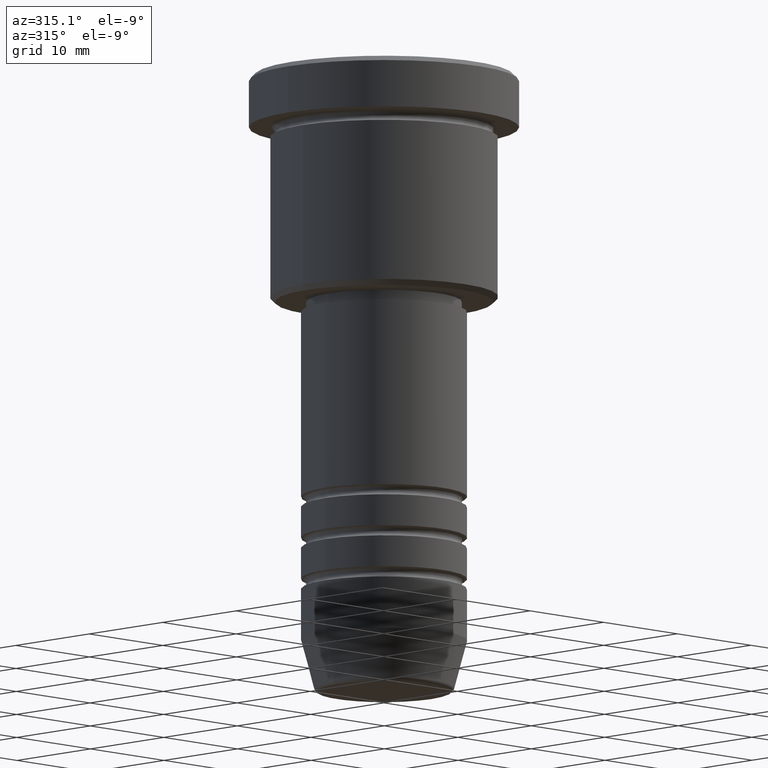
[diagram: clean part render]
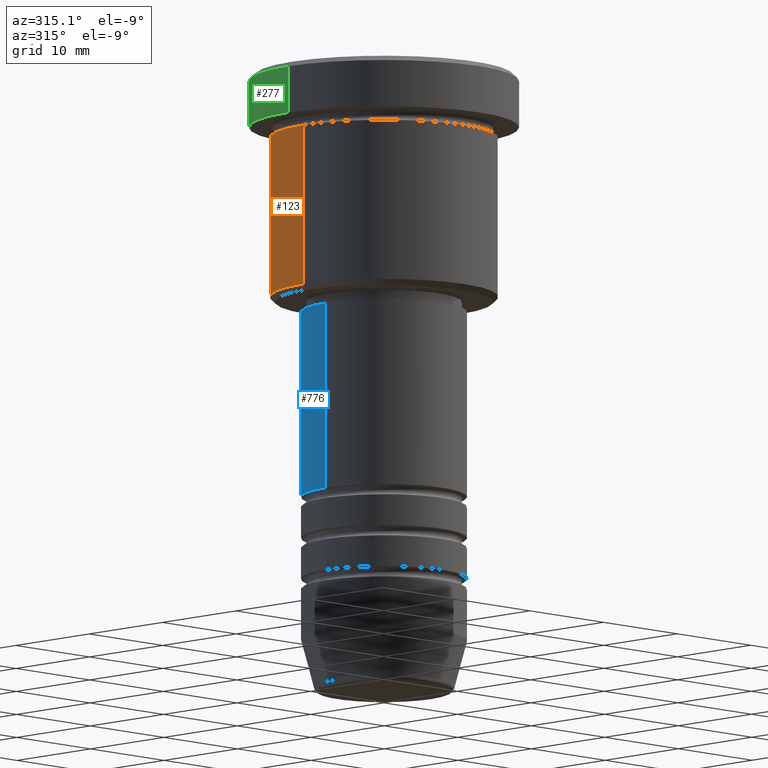
[diagram: same view with three faces highlighted in distinct colors, each labeled with its STEP entity id]
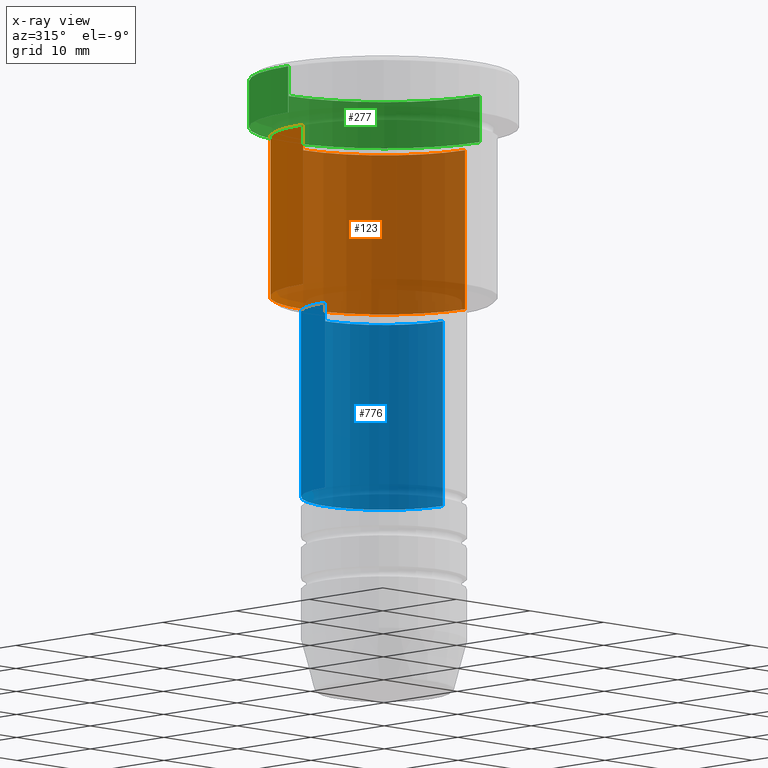
[diagram: x-ray of the same camera — body ghosted, the three highlighted faces saturated]
A machine part, auxiliary view with three faces highlighted in distinct colors.
The next image is the same camera in x-ray (body ghosted, the three faces saturated) — at least one of them is partly hidden behind the body in this view.
Their STEP definitions:

[orange] entity #123 — the highlighted cylindrical surface (partial cylindrical patch) has radius 11 mm, axis along (-0, -0, 1).
#14 = DIRECTION ( 'NONE',  ( -0.000000000000000000, -0.000000000000000000, 1.000000000000000000 ) ) ;
#88 = VERTEX_POINT ( 'NONE', #588 ) ;
#123 = ADVANCED_FACE ( 'NONE', ( #764 ), #230, .T. ) ;
#129 = CARTESIAN_POINT ( 'NONE',  ( 0.000000000000000000, 0.000000000000000000, -5.999999999999999112 ) ) ;
#132 = CARTESIAN_POINT ( 'NONE',  ( 11.00000000000000000, 0.000000000000000000, -5.999999999999999112 ) ) ;
#230 = CYLINDRICAL_SURFACE ( 'NONE', #919, 11.00000000000000000 ) ;
#234 = LINE ( 'NONE', #423, #965 ) ;
#286 = AXIS2_PLACEMENT_3D ( 'NONE', #129, #762, #637 ) ;
#313 = ORIENTED_EDGE ( 'NONE', *, *, #1163, .T. ) ;
#324 = VECTOR ( 'NONE', #14, 1000.000000000000000 ) ;
#344 = ORIENTED_EDGE ( 'NONE', *, *, #1177, .T. ) ;
#389 = CARTESIAN_POINT ( 'NONE',  ( 0.000000000000000000, 0.000000000000000000, 0.000000000000000000 ) ) ;
#408 = DIRECTION ( 'NONE',  ( -1.000000000000000000, 0.000000000000000000, 0.000000000000000000 ) ) ;
#420 = CIRCLE ( 'NONE', #286, 11.00000000000000000 ) ;
#423 = CARTESIAN_POINT ( 'NONE',  ( -11.00000000000000000, 1.347111479062088405E-15, 0.000000000000000000 ) ) ;
#432 = ORIENTED_EDGE ( 'NONE', *, *, #856, .F. ) ;
#480 = CARTESIAN_POINT ( 'NONE',  ( 11.00000000000000000, 0.000000000000000000, 0.000000000000000000 ) ) ;
#515 = EDGE_LOOP ( 'NONE', ( #344, #313, #892, #432 ) ) ;
#560 = VERTEX_POINT ( 'NONE', #866 ) ;
#564 = DIRECTION ( 'NONE',  ( -0.000000000000000000, -0.000000000000000000, 1.000000000000000000 ) ) ;
#572 = CIRCLE ( 'NONE', #1116, 11.00000000000000000 ) ;
#588 = CARTESIAN_POINT ( 'NONE',  ( 11.00000000000000000, 0.000000000000000000, -21.50000000000000000 ) ) ;
#592 = CARTESIAN_POINT ( 'NONE',  ( 0.000000000000000000, 0.000000000000000000, -21.50000000000000000 ) ) ;
#637 = DIRECTION ( 'NONE',  ( 1.000000000000000000, 0.000000000000000000, 0.000000000000000000 ) ) ;
#647 = LINE ( 'NONE', #480, #324 ) ;
#669 = DIRECTION ( 'NONE',  ( -0.000000000000000000, -0.000000000000000000, 1.000000000000000000 ) ) ;
#677 = DIRECTION ( 'NONE',  ( -0.000000000000000000, -0.000000000000000000, 1.000000000000000000 ) ) ;
#762 = DIRECTION ( 'NONE',  ( -0.000000000000000000, -0.000000000000000000, 1.000000000000000000 ) ) ;
#764 = FACE_OUTER_BOUND ( 'NONE', #515, .T. ) ;
#856 = EDGE_CURVE ( 'NONE', #88, #960, #647, .T. ) ;
#866 = CARTESIAN_POINT ( 'NONE',  ( -11.00000000000000000, 1.347111479062088405E-15, -21.50000000000000000 ) ) ;
#892 = ORIENTED_EDGE ( 'NONE', *, *, #1094, .F. ) ;
#919 = AXIS2_PLACEMENT_3D ( 'NONE', #389, #564, #959 ) ;
#959 = DIRECTION ( 'NONE',  ( 1.000000000000000000, 0.000000000000000000, 0.000000000000000000 ) ) ;
#960 = VERTEX_POINT ( 'NONE', #132 ) ;
#965 = VECTOR ( 'NONE', #669, 1000.000000000000000 ) ;
#996 = VERTEX_POINT ( 'NONE', #1160 ) ;
#1094 = EDGE_CURVE ( 'NONE', #960, #996, #420, .T. ) ;
#1116 = AXIS2_PLACEMENT_3D ( 'NONE', #592, #677, #408 ) ;
#1160 = CARTESIAN_POINT ( 'NONE',  ( -11.00000000000000000, 1.347111479062088405E-15, -5.999999999999999112 ) ) ;
#1163 = EDGE_CURVE ( 'NONE', #560, #996, #234, .T. ) ;
#1177 = EDGE_CURVE ( 'NONE', #88, #560, #572, .T. ) ;

[blue] entity #776 — the highlighted cylindrical surface (partial cylindrical patch) has radius 8 mm, axis along (-0, -0, 1).
#65 = LINE ( 'NONE', #510, #1135 ) ;
#67 = VERTEX_POINT ( 'NONE', #633 ) ;
#76 = DIRECTION ( 'NONE',  ( -0.000000000000000000, -0.000000000000000000, 1.000000000000000000 ) ) ;
#82 = ORIENTED_EDGE ( 'NONE', *, *, #646, .T. ) ;
#99 = ORIENTED_EDGE ( 'NONE', *, *, #265, .F. ) ;
#165 = VERTEX_POINT ( 'NONE', #870 ) ;
#192 = EDGE_LOOP ( 'NONE', ( #495, #82, #99, #222 ) ) ;
#222 = ORIENTED_EDGE ( 'NONE', *, *, #366, .F. ) ;
#229 = CARTESIAN_POINT ( 'NONE',  ( -8.000000000000000000, 9.797174393178825657E-16, -23.00000000000002132 ) ) ;
#233 = CARTESIAN_POINT ( 'NONE',  ( -8.000000000000000000, 9.797174393178825657E-16, 0.000000000000000000 ) ) ;
#244 = VERTEX_POINT ( 'NONE', #1080 ) ;
#256 = DIRECTION ( 'NONE',  ( -0.000000000000000000, -0.000000000000000000, 1.000000000000000000 ) ) ;
#262 = DIRECTION ( 'NONE',  ( -0.000000000000000000, -0.000000000000000000, 1.000000000000000000 ) ) ;
#265 = EDGE_CURVE ( 'NONE', #165, #653, #709, .T. ) ;
#270 = AXIS2_PLACEMENT_3D ( 'NONE', #989, #76, #593 ) ;
#272 = VECTOR ( 'NONE', #584, 1000.000000000000000 ) ;
#366 = EDGE_CURVE ( 'NONE', #67, #165, #65, .T. ) ;
#495 = ORIENTED_EDGE ( 'NONE', *, *, #1119, .T. ) ;
#510 = CARTESIAN_POINT ( 'NONE',  ( 8.000000000000000000, 0.000000000000000000, 0.000000000000000000 ) ) ;
#584 = DIRECTION ( 'NONE',  ( -0.000000000000000000, -0.000000000000000000, 1.000000000000000000 ) ) ;
#593 = DIRECTION ( 'NONE',  ( 1.000000000000000000, 0.000000000000000000, 0.000000000000000000 ) ) ;
#633 = CARTESIAN_POINT ( 'NONE',  ( 8.000000000000000000, 0.000000000000000000, -40.99999999999999289 ) ) ;
#646 = EDGE_CURVE ( 'NONE', #244, #653, #1048, .T. ) ;
#653 = VERTEX_POINT ( 'NONE', #229 ) ;
#682 = CARTESIAN_POINT ( 'NONE',  ( 0.000000000000000000, 0.000000000000000000, -40.99999999999999289 ) ) ;
#688 = DIRECTION ( 'NONE',  ( -0.000000000000000000, -0.000000000000000000, 1.000000000000000000 ) ) ;
#709 = CIRCLE ( 'NONE', #270, 8.000000000000000000 ) ;
#725 = FACE_OUTER_BOUND ( 'NONE', #192, .T. ) ;
#776 = ADVANCED_FACE ( 'NONE', ( #725 ), #896, .T. ) ;
#828 = AXIS2_PLACEMENT_3D ( 'NONE', #682, #688, #1053 ) ;
#870 = CARTESIAN_POINT ( 'NONE',  ( 8.000000000000000000, 0.000000000000000000, -23.00000000000002132 ) ) ;
#896 = CYLINDRICAL_SURFACE ( 'NONE', #922, 8.000000000000000000 ) ;
#911 = DIRECTION ( 'NONE',  ( 1.000000000000000000, 0.000000000000000000, 0.000000000000000000 ) ) ;
#922 = AXIS2_PLACEMENT_3D ( 'NONE', #997, #256, #911 ) ;
#989 = CARTESIAN_POINT ( 'NONE',  ( 0.000000000000000000, 0.000000000000000000, -23.00000000000002132 ) ) ;
#997 = CARTESIAN_POINT ( 'NONE',  ( 0.000000000000000000, 0.000000000000000000, 0.000000000000000000 ) ) ;
#1048 = LINE ( 'NONE', #233, #272 ) ;
#1053 = DIRECTION ( 'NONE',  ( 1.000000000000000000, 0.000000000000000000, 0.000000000000000000 ) ) ;
#1080 = CARTESIAN_POINT ( 'NONE',  ( -8.000000000000000000, 9.797174393178825657E-16, -40.99999999999999289 ) ) ;
#1119 = EDGE_CURVE ( 'NONE', #67, #244, #1139, .T. ) ;
#1135 = VECTOR ( 'NONE', #262, 1000.000000000000000 ) ;
#1139 = CIRCLE ( 'NONE', #828, 8.000000000000000000 ) ;

[green] entity #277 — the highlighted cylindrical surface (partial cylindrical patch) has radius 13 mm, axis along (-0, -0, 1).
#60 = DIRECTION ( 'NONE',  ( -0.000000000000000000, -0.000000000000000000, 1.000000000000000000 ) ) ;
#75 = EDGE_CURVE ( 'NONE', #1055, #1031, #644, .T. ) ;
#85 = VECTOR ( 'NONE', #1088, 1000.000000000000000 ) ;
#94 = ORIENTED_EDGE ( 'NONE', *, *, #318, .T. ) ;
#148 = DIRECTION ( 'NONE',  ( 1.000000000000000000, 0.000000000000000000, 0.000000000000000000 ) ) ;
#155 = DIRECTION ( 'NONE',  ( 1.000000000000000000, 0.000000000000000000, 0.000000000000000000 ) ) ;
#169 = EDGE_CURVE ( 'NONE', #1031, #454, #937, .T. ) ;
#184 = CARTESIAN_POINT ( 'NONE',  ( 13.00000000000000000, 0.000000000000000000, 0.000000000000000000 ) ) ;
#277 = ADVANCED_FACE ( 'NONE', ( #523 ), #798, .T. ) ;
#299 = ORIENTED_EDGE ( 'NONE', *, *, #169, .T. ) ;
#302 = AXIS2_PLACEMENT_3D ( 'NONE', #931, #832, #148 ) ;
#306 = CARTESIAN_POINT ( 'NONE',  ( -13.00000000000000000, 1.592040838891559095E-15, 0.000000000000000000 ) ) ;
#318 = EDGE_CURVE ( 'NONE', #454, #885, #1097, .T. ) ;
#331 = CARTESIAN_POINT ( 'NONE',  ( 0.000000000000000000, 0.000000000000000000, -0.4999999999999865663 ) ) ;
#343 = CARTESIAN_POINT ( 'NONE',  ( 0.000000000000000000, 0.000000000000000000, 0.000000000000000000 ) ) ;
#384 = CARTESIAN_POINT ( 'NONE',  ( 13.00000000000000000, 0.000000000000000000, -5.000000000000000000 ) ) ;
#386 = ORIENTED_EDGE ( 'NONE', *, *, #75, .T. ) ;
#454 = VERTEX_POINT ( 'NONE', #562 ) ;
#523 = FACE_OUTER_BOUND ( 'NONE', #968, .T. ) ;
#526 = VECTOR ( 'NONE', #60, 1000.000000000000000 ) ;
#562 = CARTESIAN_POINT ( 'NONE',  ( -13.00000000000000000, 1.592040838891559095E-15, -0.4999999999999865663 ) ) ;
#567 = AXIS2_PLACEMENT_3D ( 'NONE', #331, #890, #1175 ) ;
#644 = CIRCLE ( 'NONE', #302, 13.00000000000000000 ) ;
#684 = CARTESIAN_POINT ( 'NONE',  ( -13.00000000000000000, 1.592040838891559095E-15, -5.000000000000000000 ) ) ;
#727 = EDGE_CURVE ( 'NONE', #1055, #885, #814, .T. ) ;
#741 = ORIENTED_EDGE ( 'NONE', *, *, #727, .F. ) ;
#798 = CYLINDRICAL_SURFACE ( 'NONE', #1016, 13.00000000000000000 ) ;
#814 = LINE ( 'NONE', #184, #85 ) ;
#832 = DIRECTION ( 'NONE',  ( -0.000000000000000000, -0.000000000000000000, 1.000000000000000000 ) ) ;
#885 = VERTEX_POINT ( 'NONE', #929 ) ;
#890 = DIRECTION ( 'NONE',  ( 0.000000000000000000, 0.000000000000000000, -1.000000000000000000 ) ) ;
#929 = CARTESIAN_POINT ( 'NONE',  ( 13.00000000000000000, 0.000000000000000000, -0.4999999999999865663 ) ) ;
#931 = CARTESIAN_POINT ( 'NONE',  ( 0.000000000000000000, 0.000000000000000000, -5.000000000000000000 ) ) ;
#937 = LINE ( 'NONE', #306, #526 ) ;
#968 = EDGE_LOOP ( 'NONE', ( #386, #299, #94, #741 ) ) ;
#1016 = AXIS2_PLACEMENT_3D ( 'NONE', #343, #1169, #155 ) ;
#1031 = VERTEX_POINT ( 'NONE', #684 ) ;
#1055 = VERTEX_POINT ( 'NONE', #384 ) ;
#1088 = DIRECTION ( 'NONE',  ( -0.000000000000000000, -0.000000000000000000, 1.000000000000000000 ) ) ;
#1097 = CIRCLE ( 'NONE', #567, 13.00000000000000000 ) ;
#1169 = DIRECTION ( 'NONE',  ( -0.000000000000000000, -0.000000000000000000, 1.000000000000000000 ) ) ;
#1175 = DIRECTION ( 'NONE',  ( 1.000000000000000000, 0.000000000000000000, 0.000000000000000000 ) ) ;